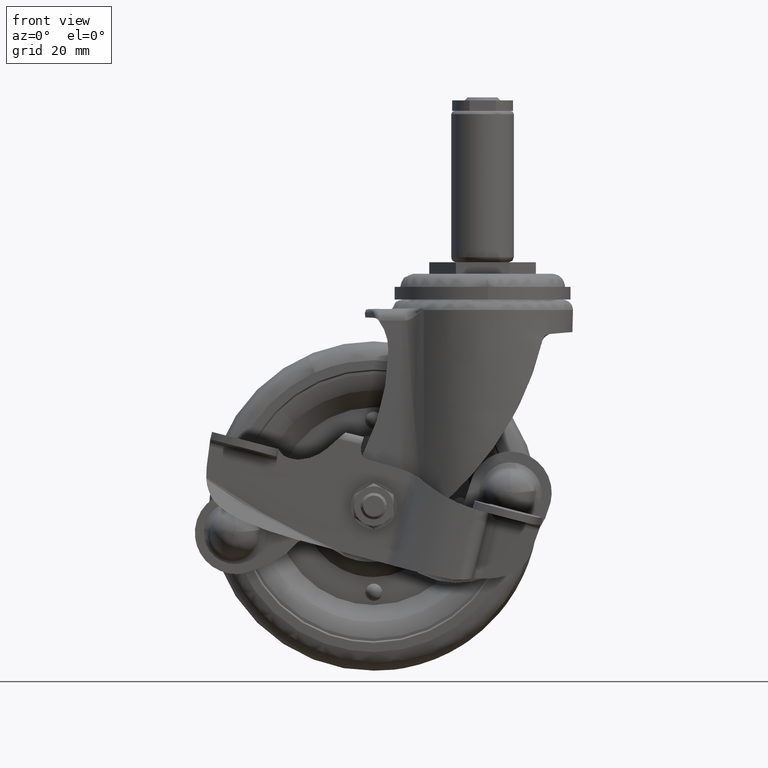
[diagram: clean part render]
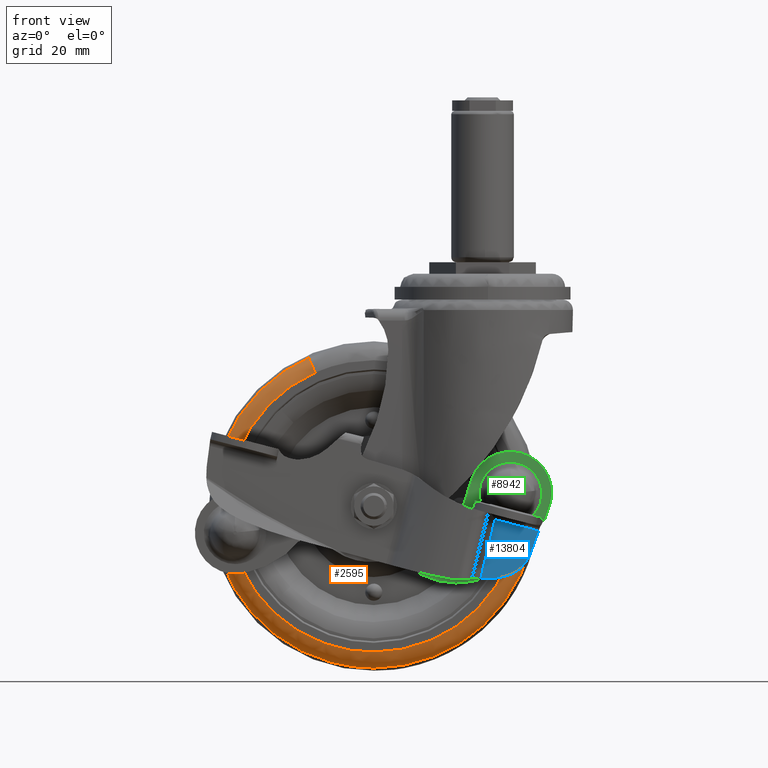
[diagram: same view with three faces highlighted in distinct colors, each labeled with its STEP entity id]
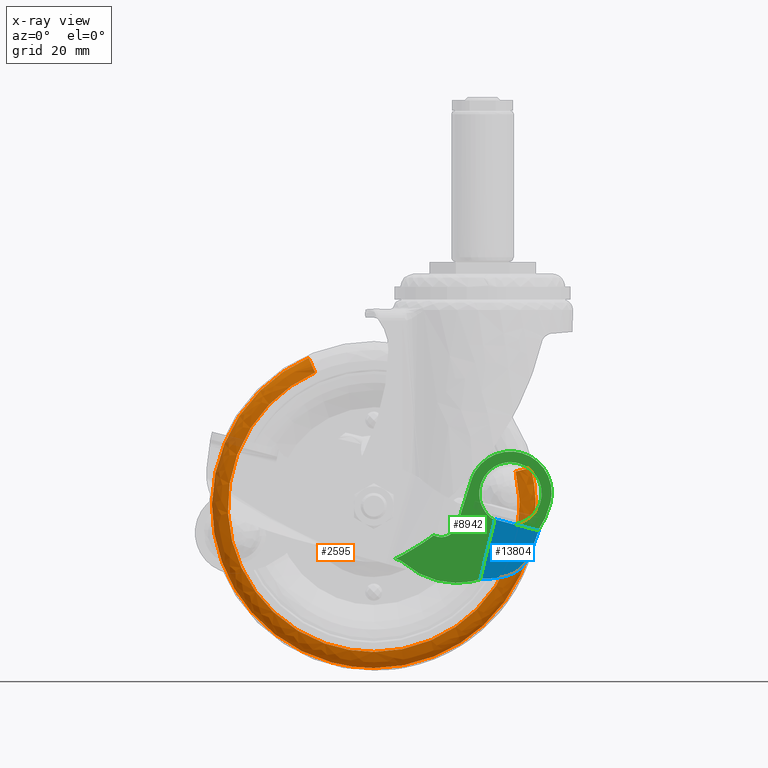
[diagram: x-ray of the same camera — body ghosted, the three highlighted faces saturated]
A machine part, front view with three faces highlighted in distinct colors.
The next image is the same camera in x-ray (body ghosted, the three faces saturated) — at least one of them is partly hidden behind the body in this view.
Their STEP definitions:

[orange] entity #2595 — the highlighted face is a freeform B-spline surface patch.
#2451=CARTESIAN_POINT('',(-52.795330955972730,-6.902723032268675,-28.972327155051399));
#2452=CARTESIAN_POINT('',(-90.543783499283123,-6.902723032268676,-45.567698490724879));
#2453=CARTESIAN_POINT('',(-80.791670519704795,-6.902723032268676,-85.633248675603042));
#2454=CARTESIAN_POINT('',(-69.158888844101710,-6.902723032268675,-133.425332195307700));
#2455=CARTESIAN_POINT('',(-21.366805324397053,-6.902723032268676,-121.792550519704690));
#2456=CARTESIAN_POINT('',(26.425278195307637,-6.902723032268675,-110.159768844101630));
#2457=CARTESIAN_POINT('',(14.792496519704596,-6.902723032268676,-62.367685324396973));
#2458=CARTESIAN_POINT('',(-52.473361707191167,-11.260848914675504,-29.704690454564350));
#2459=CARTESIAN_POINT('',(-89.607851929354766,-11.260848914675504,-46.030145223622227));
#2460=CARTESIAN_POINT('',(-80.014352866841179,-11.260848914675499,-85.444046492261791));
#2461=CARTESIAN_POINT('',(-68.570773374579360,-11.260848914675503,-132.458812359102890));
#2462=CARTESIAN_POINT('',(-21.556007507738272,-11.260848914675499,-121.015232866841090));
#2463=CARTESIAN_POINT('',(25.458758359102813,-11.260848914675503,-109.571653374579270));
#2464=CARTESIAN_POINT('',(14.015178866841000,-11.260848914675499,-62.556887507738175));
#2465=CARTESIAN_POINT('',(-50.693422795595147,-10.990662836928530,-33.753406097940264));
#2466=CARTESIAN_POINT('',(-84.433752147431818,-10.990662836928527,-48.586684202233883));
#2467=CARTESIAN_POINT('',(-75.717116586549579,-10.990662836928525,-84.398082228399929));
#2468=CARTESIAN_POINT('',(-65.319501358149608,-10.990662836928530,-127.115611814949400));
#2469=CARTESIAN_POINT('',(-22.601971771600134,-10.990662836928525,-116.717996586549480));
#2470=CARTESIAN_POINT('',(20.115557814949344,-10.990662836928530,-106.320381358149530));
#2471=CARTESIAN_POINT('',(9.717942586549400,-10.990662836928525,-63.602851771600058));
#2479=(BOUNDED_SURFACE()B_SPLINE_SURFACE(2,2,((#2451,#2458,#2465),(#2452,#2459,#2466),(#2453,#2460,#2467),(#2454,#2461,#2468),(#2455,#2462,#2469),(#2456,#2463,#2470),(#2457,#2464,#2471)),.UNSPECIFIED.,.F.,.F.,.U.)B_SPLINE_SURFACE_WITH_KNOTS((3,2,2,3),(3,3),(0.0,71.716857643255551,153.213286783318690,234.709715923381910),(0.0,7.586701093351589),.UNSPECIFIED.)GEOMETRIC_REPRESENTATION_ITEM()RATIONAL_B_SPLINE_SURFACE(((0.860976703474157,0.643294670566865,0.858118598763216),(0.681201873280527,0.508972580667139,0.678940550441862),(0.917747702482672,0.685712172640463,0.914701140338380),(0.648945623843871,0.484871727216232,0.646791379092337),(0.917747702482672,0.685712172640463,0.914701140338380),(0.648945623843871,0.484871727216232,0.646791379092337),(0.917747702482672,0.685712172640463,0.914701140338380)))REPRESENTATION_ITEM('')SURFACE());
#2480=CARTESIAN_POINT('',(-50.816125404467108,-10.999966999999890,-33.474302153024759));
#2481=VERTEX_POINT('',#2480);
#2482=CARTESIAN_POINT('',(-32.999587000000091,-10.999966999999900,-118.270084999999990));
#2483=VERTEX_POINT('',#2482);
#2484=CARTESIAN_POINT('',(-50.816125404467101,-10.999966999999891,-33.474302153024759));
#2485=CARTESIAN_POINT('',(-77.269205000000071,-10.999966999999900,-45.103882951960266));
#2486=CARTESIAN_POINT('',(-77.269205000000085,-10.999966999999900,-74.000467000000000));
#2487=CARTESIAN_POINT('',(-77.269205000000085,-10.999966999999900,-118.270085000000010));
#2488=CARTESIAN_POINT('',(-32.999587000000091,-10.999966999999900,-118.270084999999990));
#2496=(BOUNDED_CURVE()B_SPLINE_CURVE(2,(#2484,#2485,#2486,#2487,#2488),.UNSPECIFIED.,.F.,.U.)B_SPLINE_CURVE_WITH_KNOTS((3,2,3),(0.568337989564976,0.750000000000000,1.0),.UNSPECIFIED.)CURVE()GEOMETRIC_REPRESENTATION_ITEM()RATIONAL_B_SPLINE_CURVE((0.883644850243452,0.787169716110251,1.0,0.707106781186548,1.0))REPRESENTATION_ITEM(''));
#2497=EDGE_CURVE('',#2481,#2483,#2496,.T.);
#2498=ORIENTED_EDGE('',*,*,#2497,.F.);
#2499=CARTESIAN_POINT('',(-52.769553540987260,-7.199966533476589,-29.030866369513600));
#2500=VERTEX_POINT('',#2499);
#2501=CARTESIAN_POINT('',(-52.769553540987275,-7.199966533476589,-29.030866369513600));
#2502=CARTESIAN_POINT('',(-52.391481526760664,-10.999967154815081,-29.890890647427820));
#2503=CARTESIAN_POINT('',(-50.816125404467115,-10.999966999999891,-33.474302153024766));
#2511=(BOUNDED_CURVE()B_SPLINE_CURVE(2,(#2501,#2502,#2503),.UNSPECIFIED.,.F.,.U.)B_SPLINE_CURVE_WITH_KNOTS((3,3),(-1.696879041701946,-0.313178808145094),.UNSPECIFIED.)CURVE()GEOMETRIC_REPRESENTATION_ITEM()RATIONAL_B_SPLINE_CURVE((0.842097406083891,0.662044243749889,0.839498751851419))REPRESENTATION_ITEM(''));
#2512=EDGE_CURVE('',#2500,#2481,#2511,.T.);
#2513=ORIENTED_EDGE('',*,*,#2512,.F.);
#2514=CARTESIAN_POINT('',(-32.999587000000091,-7.199966999996089,-123.123949638828610));
#2515=VERTEX_POINT('',#2514);
#2516=CARTESIAN_POINT('',(-52.769553540987275,-7.199966533476589,-29.030866369513610));
#2517=CARTESIAN_POINT('',(-82.123069638827687,-7.199966999999900,-41.935540385813759));
#2518=CARTESIAN_POINT('',(-82.123069638827687,-7.199966999999900,-74.000467000000000));
#2519=CARTESIAN_POINT('',(-82.123069638827687,-7.199966999999900,-123.123949638827600));
#2520=CARTESIAN_POINT('',(-32.999587000000091,-7.199966999996089,-123.123949638828610));
#2528=(BOUNDED_CURVE()B_SPLINE_CURVE(2,(#2516,#2517,#2518,#2519,#2520),.UNSPECIFIED.,.F.,.U.)B_SPLINE_CURVE_WITH_KNOTS((3,2,3),(0.568337867912527,0.750000000000000,1.0),.UNSPECIFIED.)CURVE()GEOMETRIC_REPRESENTATION_ITEM()RATIONAL_B_SPLINE_CURVE((0.883644979455376,0.787169573585542,1.0,0.707106781186547,1.0))REPRESENTATION_ITEM(''));
#2529=EDGE_CURVE('',#2500,#2515,#2528,.T.);
#2530=ORIENTED_EDGE('',*,*,#2529,.T.);
#2531=CARTESIAN_POINT('',(15.795340042807760,-7.199966999965504,-79.672472064797802));
#2532=VERTEX_POINT('',#2531);
#2533=CARTESIAN_POINT('',(-32.999587000000091,-7.199966999996089,-123.123949638828610));
#2534=CARTESIAN_POINT('',(10.744466605515219,-7.199966999999900,-123.123949638827600));
#2535=CARTESIAN_POINT('',(15.795340042807760,-7.199966999965504,-79.672472064797802));
#2543=(BOUNDED_CURVE()B_SPLINE_CURVE(2,(#2533,#2534,#2535),.UNSPECIFIED.,.F.,.U.)B_SPLINE_CURVE_WITH_KNOTS((3,3),(0.0,0.229999999999704),.UNSPECIFIED.)CURVE()GEOMETRIC_REPRESENTATION_ITEM()RATIONAL_B_SPLINE_CURVE((1.0,0.730538238691971,0.956886118190077))REPRESENTATION_ITEM(''));
#2544=EDGE_CURVE('',#2515,#2532,#2543,.T.);
#2545=ORIENTED_EDGE('',*,*,#2544,.T.);
#2546=CARTESIAN_POINT('',(14.730347563158681,-7.199966999994308,-62.382812625561307));
#2547=VERTEX_POINT('',#2546);
#2548=CARTESIAN_POINT('',(15.795340042807759,-7.199966999965504,-79.672472064797802));
#2549=CARTESIAN_POINT('',(16.123895638827506,-7.199966999999900,-76.845985460072399));
#2550=CARTESIAN_POINT('',(16.123895638827509,-7.199966999999900,-74.000467000000000));
#2551=CARTESIAN_POINT('',(16.123895638827506,-7.199966999999900,-68.108061141168648));
#2552=CARTESIAN_POINT('',(14.730347563158679,-7.199966999994308,-62.382812625561307));
#2560=(BOUNDED_CURVE()B_SPLINE_CURVE(2,(#2548,#2549,#2550,#2551,#2552),.UNSPECIFIED.,.F.,.U.)B_SPLINE_CURVE_WITH_KNOTS((3,2,3),(0.229999999999704,0.250000000000000,0.290401677693045),.UNSPECIFIED.)CURVE()GEOMETRIC_REPRESENTATION_ITEM()RATIONAL_B_SPLINE_CURVE((0.956886118190077,0.976568542494577,1.0,0.952666490300082,0.920631806223977))REPRESENTATION_ITEM(''));
#2561=EDGE_CURVE('',#2532,#2547,#2560,.T.);
#2562=ORIENTED_EDGE('',*,*,#2561,.T.);
#2563=CARTESIAN_POINT('',(10.014178658992959,-10.999966999999890,-63.530746742488802));
#2564=VERTEX_POINT('',#2563);
#2565=CARTESIAN_POINT('',(14.730347563158681,-7.199966999994308,-62.382812625561307));
#2566=CARTESIAN_POINT('',(13.817540679728550,-10.999967145706654,-62.604993422193516));
#2567=CARTESIAN_POINT('',(10.014178658992957,-10.999966999999891,-63.530746742488816));
#2575=(BOUNDED_CURVE()B_SPLINE_CURVE(2,(#2565,#2566,#2567),.UNSPECIFIED.,.F.,.U.)B_SPLINE_CURVE_WITH_KNOTS((3,3),(-1.696878933668028,-0.313178810753598),.UNSPECIFIED.)CURVE()GEOMETRIC_REPRESENTATION_ITEM()RATIONAL_B_SPLINE_CURVE((0.897623513828549,0.705698068505800,0.894853539039811))REPRESENTATION_ITEM(''));
#2576=EDGE_CURVE('',#2547,#2564,#2575,.T.);
#2577=ORIENTED_EDGE('',*,*,#2576,.T.);
#2578=CARTESIAN_POINT('',(-32.999587000000091,-10.999966999999900,-118.270084999999990));
#2579=CARTESIAN_POINT('',(11.270030999999904,-10.999966999999900,-118.270085000000010));
#2580=CARTESIAN_POINT('',(11.270030999999900,-10.999966999999900,-74.000467000000000));
#2581=CARTESIAN_POINT('',(11.270030999999900,-10.999966999999899,-68.690286563367366));
#2582=CARTESIAN_POINT('',(10.014178658992957,-10.999966999999891,-63.530746742488802));
#2590=(BOUNDED_CURVE()B_SPLINE_CURVE(2,(#2578,#2579,#2580,#2581,#2582),.UNSPECIFIED.,.F.,.U.)B_SPLINE_CURVE_WITH_KNOTS((3,2,3),(0.0,0.250000000000000,0.290401677695485),.UNSPECIFIED.)CURVE()GEOMETRIC_REPRESENTATION_ITEM()RATIONAL_B_SPLINE_CURVE((1.0,0.707106781186548,1.0,0.952666490297222,0.920631806220107))REPRESENTATION_ITEM(''));
#2591=EDGE_CURVE('',#2483,#2564,#2590,.T.);
#2592=ORIENTED_EDGE('',*,*,#2591,.F.);
#2593=EDGE_LOOP('',(#2498,#2513,#2530,#2545,#2562,#2577,#2592));
#2594=FACE_OUTER_BOUND('',#2593,.T.);
#2595=ADVANCED_FACE('',(#2594),#2479,.T.);

[blue] entity #13804 — the highlighted face is a freeform B-spline surface patch.
#12461=CARTESIAN_POINT('',(-0.593325138463923,-21.650185160143401,-94.971591016328986));
#12462=VERTEX_POINT('',#12461);
#12498=CARTESIAN_POINT('',(3.778076320847235,-22.044159585698502,-77.067411118623596));
#12499=VERTEX_POINT('',#12498);
#12500=CARTESIAN_POINT('',(3.778076320847235,-22.044159585698502,-77.067411118623596));
#12501=CARTESIAN_POINT('',(-0.593325138463923,-21.650185160143401,-94.971591016328986));
#12502=QUASI_UNIFORM_CURVE('',1,(#12500,#12501),.UNSPECIFIED.,.F.,.U.);
#12503=EDGE_CURVE('',#12499,#12462,#12502,.T.);
#12550=CARTESIAN_POINT('',(17.002427417463501,-23.236009882479649,-80.524904665094411));
#12551=VERTEX_POINT('',#12550);
#12552=CARTESIAN_POINT('',(17.002427417463501,-23.236009882479649,-80.524904665094411));
#12553=CARTESIAN_POINT('',(3.778076320847235,-22.044159585698502,-77.067411118623596));
#12554=QUASI_UNIFORM_CURVE('',1,(#12552,#12553),.UNSPECIFIED.,.F.,.U.);
#12555=EDGE_CURVE('',#12551,#12499,#12554,.T.);
#13745=CARTESIAN_POINT('',(-1.472233109704846,-21.570973203449679,-76.171416438587158));
#13746=CARTESIAN_POINT('',(17.881335703341001,-23.315221867530081,-76.171416438587158));
#13747=CARTESIAN_POINT('',(-1.472233109704846,-21.570973203449679,-95.901284317589571));
#13748=CARTESIAN_POINT('',(17.881335703341001,-23.315221867530081,-95.901284317589571));
#13749=B_SPLINE_SURFACE_WITH_KNOTS('',1,1,((#13745,#13747),(#13746,#13748)),.UNSPECIFIED.,.F.,.F.,.U.,(2,2),(2,2),(0.0,19.432010426187169),(0.0,19.729867879002409),.UNSPECIFIED.);
#13750=ORIENTED_EDGE('',*,*,#12555,.T.);
#13751=ORIENTED_EDGE('',*,*,#12503,.T.);
#13752=CARTESIAN_POINT('',(-0.282147624913162,-21.678230166599100,-94.945963496447291));
#13753=VERTEX_POINT('',#13752);
#13754=CARTESIAN_POINT('',(-0.282147624913163,-21.678230166599128,-94.945963496447263));
#13755=CARTESIAN_POINT('',(-0.437688429233366,-21.664211985106796,-94.959359510377340));
#13756=CARTESIAN_POINT('',(-0.593325138463925,-21.650185160143419,-94.971591016328972));
#13764=(BOUNDED_CURVE()B_SPLINE_CURVE(2,(#13754,#13755,#13756),.UNSPECIFIED.,.F.,.U.)CURVE()GEOMETRIC_REPRESENTATION_ITEM()QUASI_UNIFORM_CURVE()RATIONAL_B_SPLINE_CURVE((1.0,0.999992997774074,1.0))REPRESENTATION_ITEM(''));
#13765=EDGE_CURVE('',#13753,#12462,#13764,.T.);
#13766=ORIENTED_EDGE('',*,*,#13765,.F.);
#13767=CARTESIAN_POINT('',(7.729509859024640,-22.400284222800249,-94.000866809081799));
#13768=VERTEX_POINT('',#13767);
#13769=CARTESIAN_POINT('',(7.729509859024691,-22.400284222800270,-94.000866809081799));
#13770=CARTESIAN_POINT('',(3.815776645688592,-22.047557343594043,-95.254116049373437));
#13771=CARTESIAN_POINT('',(-0.282147624913159,-21.678230166599089,-94.945963496447348));
#13779=(BOUNDED_CURVE()B_SPLINE_CURVE(2,(#13769,#13770,#13771),.UNSPECIFIED.,.F.,.U.)CURVE()GEOMETRIC_REPRESENTATION_ITEM()QUASI_UNIFORM_CURVE()RATIONAL_B_SPLINE_CURVE((1.0,0.981533134300469,1.0))REPRESENTATION_ITEM(''));
#13780=EDGE_CURVE('',#13768,#13753,#13779,.T.);
#13781=ORIENTED_EDGE('',*,*,#13780,.F.);
#13782=CARTESIAN_POINT('',(14.452196657962260,-23.006169244903901,-87.547518805991004));
#13783=VERTEX_POINT('',#13782);
#13784=CARTESIAN_POINT('',(14.452196657962270,-23.006169244903930,-87.547518805991004));
#13785=CARTESIAN_POINT('',(12.669694463695048,-22.845520472519627,-92.418928985214080));
#13786=CARTESIAN_POINT('',(7.729509859024643,-22.400284222800231,-94.000866809081742));
#13794=(BOUNDED_CURVE()B_SPLINE_CURVE(2,(#13784,#13785,#13786),.UNSPECIFIED.,.F.,.U.)CURVE()GEOMETRIC_REPRESENTATION_ITEM()QUASI_UNIFORM_CURVE()RATIONAL_B_SPLINE_CURVE((1.0,0.898235347968171,1.0))REPRESENTATION_ITEM(''));
#13795=EDGE_CURVE('',#13783,#13768,#13794,.T.);
#13796=ORIENTED_EDGE('',*,*,#13795,.F.);
#13797=CARTESIAN_POINT('',(17.002427417463501,-23.236009882479649,-80.524904665094411));
#13798=CARTESIAN_POINT('',(14.452196657962260,-23.006169244903901,-87.547518805991004));
#13799=QUASI_UNIFORM_CURVE('',1,(#13797,#13798),.UNSPECIFIED.,.F.,.U.);
#13800=EDGE_CURVE('',#12551,#13783,#13799,.T.);
#13801=ORIENTED_EDGE('',*,*,#13800,.F.);
#13802=EDGE_LOOP('',(#13750,#13751,#13766,#13781,#13796,#13801));
#13803=FACE_OUTER_BOUND('',#13802,.T.);
#13804=ADVANCED_FACE('',(#13803),#13749,.F.);

[green] entity #8942 — the highlighted face is a freeform B-spline surface patch.
#4696=CARTESIAN_POINT('',(17.879526054931880,-15.800000000000001,-67.995695561795202));
#4697=VERTEX_POINT('',#4696);
#4711=CARTESIAN_POINT('',(8.466438999999900,-15.800000000000001,-59.696942999999983));
#4712=VERTEX_POINT('',#4711);
#4713=CARTESIAN_POINT('',(8.466438999999900,-15.800000000000001,-59.696942999999983));
#4714=CARTESIAN_POINT('',(16.831149803434307,-15.799999999999997,-59.696942999999990));
#4715=CARTESIAN_POINT('',(17.879526054931887,-15.800000000000001,-67.995695561795202));
#4723=(BOUNDED_CURVE()B_SPLINE_CURVE(2,(#4713,#4714,#4715),.UNSPECIFIED.,.F.,.U.)B_SPLINE_CURVE_WITH_KNOTS((3,3),(0.0,0.228321256435847),.UNSPECIFIED.)CURVE()GEOMETRIC_REPRESENTATION_ITEM()RATIONAL_B_SPLINE_CURVE((1.0,0.732505009115892,0.953608357503425))REPRESENTATION_ITEM(''));
#4724=EDGE_CURVE('',#4712,#4697,#4723,.T.);
#4726=CARTESIAN_POINT('',(-0.946648054932084,-15.800000000000001,-70.373994438204988));
#4727=VERTEX_POINT('',#4726);
#4728=CARTESIAN_POINT('',(-0.946648054932084,-15.800000000000004,-70.373994438204974));
#4729=CARTESIAN_POINT('',(-1.021463000000209,-15.800000000000004,-69.781773198556436));
#4730=CARTESIAN_POINT('',(-1.021463000000209,-15.800000000000001,-69.184845000000095));
#4731=CARTESIAN_POINT('',(-1.021463000000209,-15.799999999999997,-59.696942999999976));
#4732=CARTESIAN_POINT('',(8.466438999999900,-15.800000000000001,-59.696942999999983));
#4740=(BOUNDED_CURVE()B_SPLINE_CURVE(2,(#4728,#4729,#4730,#4731,#4732),.UNSPECIFIED.,.F.,.U.)B_SPLINE_CURVE_WITH_KNOTS((3,2,3),(0.728321256435848,0.750000000000000,1.0),.UNSPECIFIED.)CURVE()GEOMETRIC_REPRESENTATION_ITEM()RATIONAL_B_SPLINE_CURVE((0.953608357503425,0.974601772070656,1.0,0.707106781186548,1.0))REPRESENTATION_ITEM(''));
#4741=EDGE_CURVE('',#4727,#4712,#4740,.T.);
#4798=CARTESIAN_POINT('',(8.466438999999900,-15.800000000000001,-78.672747000000200));
#4799=VERTEX_POINT('',#4798);
#4800=CARTESIAN_POINT('',(8.466438999999900,-15.800000000000001,-78.672747000000200));
#4801=CARTESIAN_POINT('',(0.101728196565451,-15.800000000000006,-78.672747000000200));
#4802=CARTESIAN_POINT('',(-0.946648054932084,-15.800000000000002,-70.373994438204988));
#4810=(BOUNDED_CURVE()B_SPLINE_CURVE(2,(#4800,#4801,#4802),.UNSPECIFIED.,.F.,.U.)B_SPLINE_CURVE_WITH_KNOTS((3,3),(0.500000000000000,0.728321256435848),.UNSPECIFIED.)CURVE()GEOMETRIC_REPRESENTATION_ITEM()RATIONAL_B_SPLINE_CURVE((1.0,0.732505009115891,0.953608357503426))REPRESENTATION_ITEM(''));
#4811=EDGE_CURVE('',#4799,#4727,#4810,.T.);
#4813=CARTESIAN_POINT('',(17.879526054931894,-15.799999999999997,-67.995695561795202));
#4814=CARTESIAN_POINT('',(17.954341000000010,-15.799999999999997,-68.587916801443740));
#4815=CARTESIAN_POINT('',(17.954341000000010,-15.800000000000001,-69.184845000000095));
#4816=CARTESIAN_POINT('',(17.954341000000017,-15.799999999999997,-78.672747000000200));
#4817=CARTESIAN_POINT('',(8.466438999999900,-15.800000000000001,-78.672747000000200));
#4825=(BOUNDED_CURVE()B_SPLINE_CURVE(2,(#4813,#4814,#4815,#4816,#4817),.UNSPECIFIED.,.F.,.U.)B_SPLINE_CURVE_WITH_KNOTS((3,2,3),(0.228321256435848,0.250000000000000,0.500000000000000),.UNSPECIFIED.)CURVE()GEOMETRIC_REPRESENTATION_ITEM()RATIONAL_B_SPLINE_CURVE((0.953608357503425,0.974601772070656,1.0,0.707106781186548,1.0))REPRESENTATION_ITEM(''));
#4826=EDGE_CURVE('',#4697,#4799,#4825,.T.);
#6587=CARTESIAN_POINT('',(-26.495255120143050,-15.800000000000001,-89.026094466109896));
#6588=VERTEX_POINT('',#6587);
#6649=CARTESIAN_POINT('',(-24.659731101127100,-15.800000000000001,-88.131700459813800));
#6650=VERTEX_POINT('',#6649);
#6680=CARTESIAN_POINT('',(-24.659731101127100,-15.800000000000001,-88.131700459813800));
#6681=CARTESIAN_POINT('',(-25.550543211676217,-15.800000000000002,-88.634205511205778));
#6682=CARTESIAN_POINT('',(-26.495255120143060,-15.800000000000001,-89.026094466109868));
#6690=(BOUNDED_CURVE()B_SPLINE_CURVE(2,(#6680,#6681,#6682),.UNSPECIFIED.,.F.,.U.)CURVE()GEOMETRIC_REPRESENTATION_ITEM()QUASI_UNIFORM_CURVE()RATIONAL_B_SPLINE_CURVE((1.0,0.998189074621182,1.0))REPRESENTATION_ITEM(''));
#6691=EDGE_CURVE('',#6650,#6588,#6690,.T.);
#6713=CARTESIAN_POINT('',(-21.886790707758848,-15.800000000000001,-86.508807334516504));
#6714=VERTEX_POINT('',#6713);
#6744=CARTESIAN_POINT('',(-21.886790707758891,-15.800000000000001,-86.508807334516462));
#6745=CARTESIAN_POINT('',(-23.260349953495904,-15.799999999999997,-87.342314066649010));
#6746=CARTESIAN_POINT('',(-24.659731101127111,-15.800000000000001,-88.131700459813743));
#6754=(BOUNDED_CURVE()B_SPLINE_CURVE(2,(#6744,#6745,#6746),.UNSPECIFIED.,.F.,.U.)CURVE()GEOMETRIC_REPRESENTATION_ITEM()QUASI_UNIFORM_CURVE()RATIONAL_B_SPLINE_CURVE((1.0,0.999873443584239,1.0))REPRESENTATION_ITEM(''));
#6755=EDGE_CURVE('',#6714,#6650,#6754,.T.);
#6818=CARTESIAN_POINT('',(-18.000325476490151,-15.800000000000001,-84.122099987815602));
#6819=VERTEX_POINT('',#6818);
#6849=CARTESIAN_POINT('',(-18.000325476490151,-15.800000000000001,-84.122099987815602));
#6850=CARTESIAN_POINT('',(-18.632214159025828,-15.800000000000001,-84.545703353124054));
#6851=CARTESIAN_POINT('',(-19.280119141593669,-15.800000000000001,-84.943226104362040));
#6852=CARTESIAN_POINT('',(-20.257093545644480,-15.800000000000001,-85.531177927161309));
#6853=CARTESIAN_POINT('',(-20.583619652460079,-15.800000000000001,-85.725748480098858));
#6854=CARTESIAN_POINT('',(-21.236015989464409,-15.800000000000001,-86.115957602004414));
#6855=CARTESIAN_POINT('',(-21.561863048745678,-15.800000000000001,-86.311633902002356));
#6856=CARTESIAN_POINT('',(-21.886790707758848,-15.800000000000001,-86.508807334516504));
#6857=B_SPLINE_CURVE_WITH_KNOTS('',3,(#6849,#6850,#6851,#6852,#6853,#6854,#6855,#6856),.UNSPECIFIED.,.F.,.U.,(4,2,2,4),(0.0,0.500000000000003,0.750000000000002,1.0),.UNSPECIFIED.);
#6858=EDGE_CURVE('',#6819,#6714,#6857,.T.);
#6882=CARTESIAN_POINT('',(-14.817912828488399,-15.800000000000001,-81.898917731192512));
#6883=VERTEX_POINT('',#6882);
#6929=CARTESIAN_POINT('',(-14.817912828488460,-15.800000000000001,-81.898917731192441));
#6930=CARTESIAN_POINT('',(-16.387764713309817,-15.800000000000001,-83.041077040377630));
#6931=CARTESIAN_POINT('',(-18.000325476490168,-15.800000000000001,-84.122099987815574));
#6939=(BOUNDED_CURVE()B_SPLINE_CURVE(2,(#6929,#6930,#6931),.UNSPECIFIED.,.F.,.U.)CURVE()GEOMETRIC_REPRESENTATION_ITEM()QUASI_UNIFORM_CURVE()RATIONAL_B_SPLINE_CURVE((1.0,0.999815525639427,1.0))REPRESENTATION_ITEM(''));
#6940=EDGE_CURVE('',#6883,#6819,#6939,.T.);
#7944=CARTESIAN_POINT('',(-7.744955596167240,-15.800000000000001,-78.949488484495305));
#7945=VERTEX_POINT('',#7944);
#7946=CARTESIAN_POINT('',(-14.817912828488399,-15.800000000000001,-81.898917731192512));
#7947=CARTESIAN_POINT('',(-12.746540725885817,-15.799999999999999,-82.972115227795840));
#7948=CARTESIAN_POINT('',(-10.593367372839539,-15.800000000000001,-82.074240088432177));
#7949=CARTESIAN_POINT('',(-8.440194019793262,-15.799999999999999,-81.176364949068471));
#7950=CARTESIAN_POINT('',(-7.744955596167227,-15.800000000000001,-78.949488484495305));
#7958=(BOUNDED_CURVE()B_SPLINE_CURVE(2,(#7946,#7947,#7948,#7949,#7950),.UNSPECIFIED.,.F.,.U.)B_SPLINE_CURVE_WITH_KNOTS((3,2,3),(0.0,0.500000000000000,1.0),.UNSPECIFIED.)CURVE()GEOMETRIC_REPRESENTATION_ITEM()RATIONAL_B_SPLINE_CURVE((1.0,0.906214531798120,1.0,0.906214531798120,1.0))REPRESENTATION_ITEM(''));
#7959=EDGE_CURVE('',#6883,#7945,#7958,.T.);
#8264=CARTESIAN_POINT('',(-23.872752208038751,-15.800000000000001,-90.242676862733902));
#8265=VERTEX_POINT('',#8264);
#8271=CARTESIAN_POINT('',(-23.872752208038740,-15.800000000000001,-90.242676862733902));
#8272=CARTESIAN_POINT('',(-25.000305873372103,-15.800000000000008,-89.238400984350903));
#8273=CARTESIAN_POINT('',(-26.495255120143050,-15.800000000000001,-89.026094466109896));
#8281=(BOUNDED_CURVE()B_SPLINE_CURVE(2,(#8271,#8272,#8273),.UNSPECIFIED.,.F.,.U.)CURVE()GEOMETRIC_REPRESENTATION_ITEM()QUASI_UNIFORM_CURVE()RATIONAL_B_SPLINE_CURVE((1.0,0.957300400857688,1.0))REPRESENTATION_ITEM(''));
#8282=EDGE_CURVE('',#8265,#6588,#8281,.T.);
#8304=CARTESIAN_POINT('',(3.654842872924255,-15.800000000000001,-93.350422808936102));
#8305=VERTEX_POINT('',#8304);
#8311=CARTESIAN_POINT('',(-23.872752208038751,-15.800000000000001,-90.242676862733902));
#8312=CARTESIAN_POINT('',(-11.207092813357916,-15.799999999999997,-101.523573860505380));
#8313=CARTESIAN_POINT('',(3.654842872924255,-15.800000000000001,-93.350422808936102));
#8321=(BOUNDED_CURVE()B_SPLINE_CURVE(2,(#8311,#8312,#8313),.UNSPECIFIED.,.F.,.U.)CURVE()GEOMETRIC_REPRESENTATION_ITEM()QUASI_UNIFORM_CURVE()RATIONAL_B_SPLINE_CURVE((1.0,0.816648993546892,1.0))REPRESENTATION_ITEM(''));
#8322=EDGE_CURVE('',#8265,#8305,#8321,.T.);
#8343=CARTESIAN_POINT('',(19.066549042520251,-15.800000000000001,-76.503719789376802));
#8344=VERTEX_POINT('',#8343);
#8350=CARTESIAN_POINT('',(3.654842872924287,-15.800000000000001,-93.350422808936187));
#8351=CARTESIAN_POINT('',(14.218234683915039,-15.800000000000001,-87.541205777884684));
#8352=CARTESIAN_POINT('',(19.066549042520251,-15.800000000000001,-76.503719789376802));
#8360=(BOUNDED_CURVE()B_SPLINE_CURVE(2,(#8350,#8351,#8352),.UNSPECIFIED.,.F.,.U.)CURVE()GEOMETRIC_REPRESENTATION_ITEM()QUASI_UNIFORM_CURVE()RATIONAL_B_SPLINE_CURVE((1.0,0.946991830097565,1.0))REPRESENTATION_ITEM(''));
#8361=EDGE_CURVE('',#8305,#8344,#8360,.T.);
#8382=CARTESIAN_POINT('',(20.633373239468899,-15.800000000000001,-71.844222312444785));
#8383=VERTEX_POINT('',#8382);
#8389=CARTESIAN_POINT('',(19.066549042520251,-15.800000000000001,-76.503719789376802));
#8390=CARTESIAN_POINT('',(20.059029901379404,-15.800000000000001,-74.244273567833133));
#8391=CARTESIAN_POINT('',(20.633373239468899,-15.800000000000001,-71.844222312444785));
#8399=(BOUNDED_CURVE()B_SPLINE_CURVE(2,(#8389,#8390,#8391),.UNSPECIFIED.,.F.,.U.)CURVE()GEOMETRIC_REPRESENTATION_ITEM()QUASI_UNIFORM_CURVE()RATIONAL_B_SPLINE_CURVE((1.0,0.995997634098525,1.0))REPRESENTATION_ITEM(''));
#8400=EDGE_CURVE('',#8344,#8383,#8399,.T.);
#8425=CARTESIAN_POINT('',(-3.455389813245250,-15.800000000000001,-65.209837796884187));
#8426=VERTEX_POINT('',#8425);
#8432=CARTESIAN_POINT('',(20.633373239468899,-15.800000000000001,-71.844222312444785));
#8433=CARTESIAN_POINT('',(23.448096671570212,-15.799999999999999,-60.090882830739659));
#8434=CARTESIAN_POINT('',(11.796251786640930,-15.800000000000001,-56.881800690941738));
#8435=CARTESIAN_POINT('',(0.144406901711624,-15.799999999999999,-53.672718551143795));
#8436=CARTESIAN_POINT('',(-3.455389813245250,-15.800000000000001,-65.209837796884187));
#8444=(BOUNDED_CURVE()B_SPLINE_CURVE(2,(#8432,#8433,#8434,#8435,#8436),.UNSPECIFIED.,.F.,.U.)B_SPLINE_CURVE_WITH_KNOTS((3,2,3),(0.0,0.500000000000000,1.0),.UNSPECIFIED.)CURVE()GEOMETRIC_REPRESENTATION_ITEM()RATIONAL_B_SPLINE_CURVE((1.0,0.718918909676075,1.0,0.718918909676075,1.0))REPRESENTATION_ITEM(''));
#8445=EDGE_CURVE('',#8383,#8426,#8444,.T.);
#8455=CARTESIAN_POINT('',(-7.744955596167240,-15.800000000000001,-78.949488484495305));
#8456=CARTESIAN_POINT('',(-3.455389813245250,-15.800000000000001,-65.209837796884187));
#8457=QUASI_UNIFORM_CURVE('',1,(#8455,#8456),.UNSPECIFIED.,.F.,.U.);
#8458=EDGE_CURVE('',#7945,#8426,#8457,.T.);
#8918=CARTESIAN_POINT('',(-28.866215739201600,-15.800000000000001,-54.450584707726023));
#8919=CARTESIAN_POINT('',(23.342397012010981,-15.800000000000001,-54.450584707726023));
#8920=CARTESIAN_POINT('',(-28.866215739201600,-15.800000000000001,-98.311195992674300));
#8921=CARTESIAN_POINT('',(23.342397012010981,-15.800000000000001,-98.311195992674300));
#8922=B_SPLINE_SURFACE_WITH_KNOTS('',1,1,((#8918,#8920),(#8919,#8921)),.UNSPECIFIED.,.F.,.F.,.U.,(2,2),(2,2),(0.0,52.208612751212577),(0.0,43.860611284948277),.UNSPECIFIED.);
#8923=ORIENTED_EDGE('',*,*,#6755,.T.);
#8924=ORIENTED_EDGE('',*,*,#6691,.T.);
#8925=ORIENTED_EDGE('',*,*,#8282,.F.);
#8926=ORIENTED_EDGE('',*,*,#8322,.T.);
#8927=ORIENTED_EDGE('',*,*,#8361,.T.);
#8928=ORIENTED_EDGE('',*,*,#8400,.T.);
#8929=ORIENTED_EDGE('',*,*,#8445,.T.);
#8930=ORIENTED_EDGE('',*,*,#8458,.F.);
#8931=ORIENTED_EDGE('',*,*,#7959,.F.);
#8932=ORIENTED_EDGE('',*,*,#6940,.T.);
#8933=ORIENTED_EDGE('',*,*,#6858,.T.);
#8934=EDGE_LOOP('',(#8923,#8924,#8925,#8926,#8927,#8928,#8929,#8930,#8931,#8932,#8933));
#8935=FACE_OUTER_BOUND('',#8934,.T.);
#8936=ORIENTED_EDGE('',*,*,#4724,.T.);
#8937=ORIENTED_EDGE('',*,*,#4826,.T.);
#8938=ORIENTED_EDGE('',*,*,#4811,.T.);
#8939=ORIENTED_EDGE('',*,*,#4741,.T.);
#8940=EDGE_LOOP('',(#8936,#8937,#8938,#8939));
#8941=FACE_BOUND('',#8940,.T.);
#8942=ADVANCED_FACE('',(#8935,#8941),#8922,.F.);